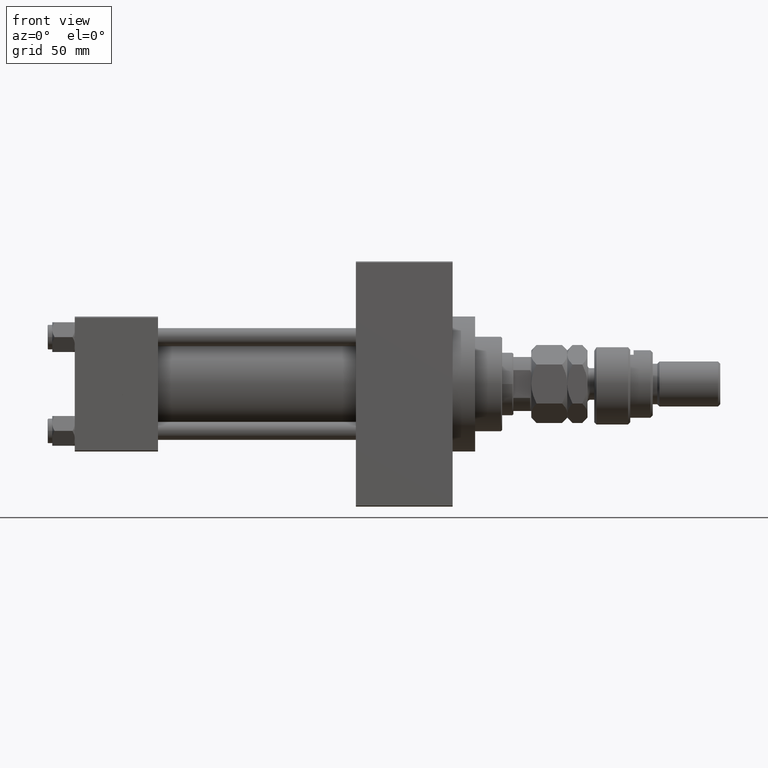
[diagram: clean part render]
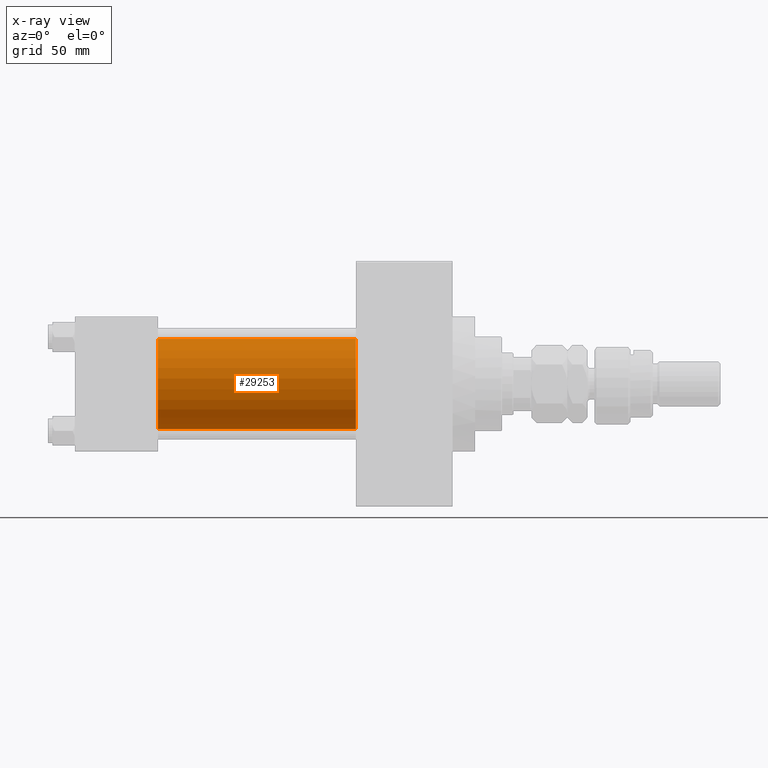
[diagram: x-ray — body ghosted, one internal face saturated and labeled with its STEP entity id]
A machine part, front view, then the same camera in x-ray: the body is ghosted and one INTERNAL B-rep face — a face not visible from any outside direction — is saturated and labeled: STEP entity #29253.
In plain terms, the highlighted cylindrical surface (partial cylindrical patch) has radius 20 mm, axis along (-1, -0, -0).
Its self-contained STEP definition (entity closure, byte-faithful):
#4247 = CARTESIAN_POINT ( 'NONE',  ( 125.0000000000000000, -2.602085213965210642E-15, 0.000000000000000000 ) ) ;
#5488 = AXIS2_PLACEMENT_3D ( 'NONE', #45368, #9072, #20989 ) ;
#6331 = VECTOR ( 'NONE', #43050, 1000.000000000000000 ) ;
#8371 = DIRECTION ( 'NONE',  ( 0.000000000000000000, 0.000000000000000000, 1.000000000000000000 ) ) ;
#8618 = FACE_OUTER_BOUND ( 'NONE', #11901, .T. ) ;
#9072 = DIRECTION ( 'NONE',  ( 1.000000000000000000, 0.000000000000000000, 0.000000000000000000 ) ) ;
#9468 = ORIENTED_EDGE ( 'NONE', *, *, #34072, .T. ) ;
#10470 = LINE ( 'NONE', #51020, #6331 ) ;
#10524 = VECTOR ( 'NONE', #34455, 1000.000000000000000 ) ;
#11583 = CARTESIAN_POINT ( 'NONE',  ( 125.0000000000000000, -2.602085213965210642E-15, 20.00000000000000000 ) ) ;
#11901 = EDGE_LOOP ( 'NONE', ( #24542, #9468, #50303, #38232 ) ) ;
#12448 = DIRECTION ( 'NONE',  ( 0.000000000000000000, 0.000000000000000000, -1.000000000000000000 ) ) ;
#17105 = VERTEX_POINT ( 'NONE', #37854 ) ;
#17359 = CARTESIAN_POINT ( 'NONE',  ( 125.0000000000000000, -2.602085213965210642E-15, 0.000000000000000000 ) ) ;
#20549 = CYLINDRICAL_SURFACE ( 'NONE', #28133, 20.00000000000000000 ) ;
#20989 = DIRECTION ( 'NONE',  ( 0.000000000000000000, 0.000000000000000000, -1.000000000000000000 ) ) ;
#22843 = AXIS2_PLACEMENT_3D ( 'NONE', #4247, #40790, #12448 ) ;
#24095 = CIRCLE ( 'NONE', #5488, 20.00000000000000000 ) ;
#24542 = ORIENTED_EDGE ( 'NONE', *, *, #49185, .T. ) ;
#25551 = CARTESIAN_POINT ( 'NONE',  ( 37.00000000000000000, -2.602085213965210642E-15, 20.00000000000000000 ) ) ;
#26716 = CARTESIAN_POINT ( 'NONE',  ( 37.00000000000000000, -1.527916156705042519E-16, -20.00000000000000000 ) ) ;
#28133 = AXIS2_PLACEMENT_3D ( 'NONE', #17359, #36702, #8371 ) ;
#28520 = VERTEX_POINT ( 'NONE', #25551 ) ;
#29253 = ADVANCED_FACE ( 'NONE', ( #8618 ), #20549, .F. ) ;
#32751 = EDGE_CURVE ( 'NONE', #34581, #28520, #42403, .T. ) ;
#34072 = EDGE_CURVE ( 'NONE', #17105, #47256, #10470, .T. ) ;
#34455 = DIRECTION ( 'NONE',  ( -1.000000000000000000, -0.000000000000000000, -0.000000000000000000 ) ) ;
#34581 = VERTEX_POINT ( 'NONE', #11583 ) ;
#36702 = DIRECTION ( 'NONE',  ( -1.000000000000000000, -0.000000000000000000, -0.000000000000000000 ) ) ;
#37854 = CARTESIAN_POINT ( 'NONE',  ( 125.0000000000000000, -1.527916156705042519E-16, -20.00000000000000000 ) ) ;
#38232 = ORIENTED_EDGE ( 'NONE', *, *, #32751, .F. ) ;
#40790 = DIRECTION ( 'NONE',  ( 1.000000000000000000, 0.000000000000000000, 0.000000000000000000 ) ) ;
#41608 = CARTESIAN_POINT ( 'NONE',  ( 125.0000000000000000, -2.602085213965210642E-15, 20.00000000000000000 ) ) ;
#42403 = LINE ( 'NONE', #41608, #10524 ) ;
#43050 = DIRECTION ( 'NONE',  ( -1.000000000000000000, -0.000000000000000000, -0.000000000000000000 ) ) ;
#45368 = CARTESIAN_POINT ( 'NONE',  ( 37.00000000000000000, -2.602085213965210642E-15, 0.000000000000000000 ) ) ;
#46563 = CIRCLE ( 'NONE', #22843, 20.00000000000000000 ) ;
#47256 = VERTEX_POINT ( 'NONE', #26716 ) ;
#49185 = EDGE_CURVE ( 'NONE', #34581, #17105, #46563, .T. ) ;
#50303 = ORIENTED_EDGE ( 'NONE', *, *, #52067, .F. ) ;
#51020 = CARTESIAN_POINT ( 'NONE',  ( 125.0000000000000000, -1.527916156705042519E-16, -20.00000000000000000 ) ) ;
#52067 = EDGE_CURVE ( 'NONE', #28520, #47256, #24095, .T. ) ;